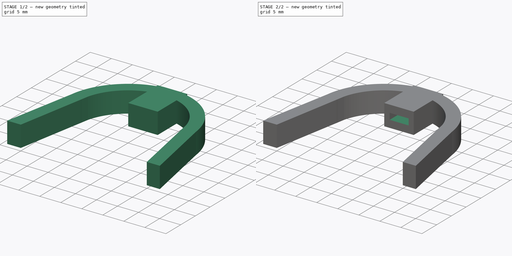
[diagram: build sequence overview — one tinted view per stage of 2, left to right]
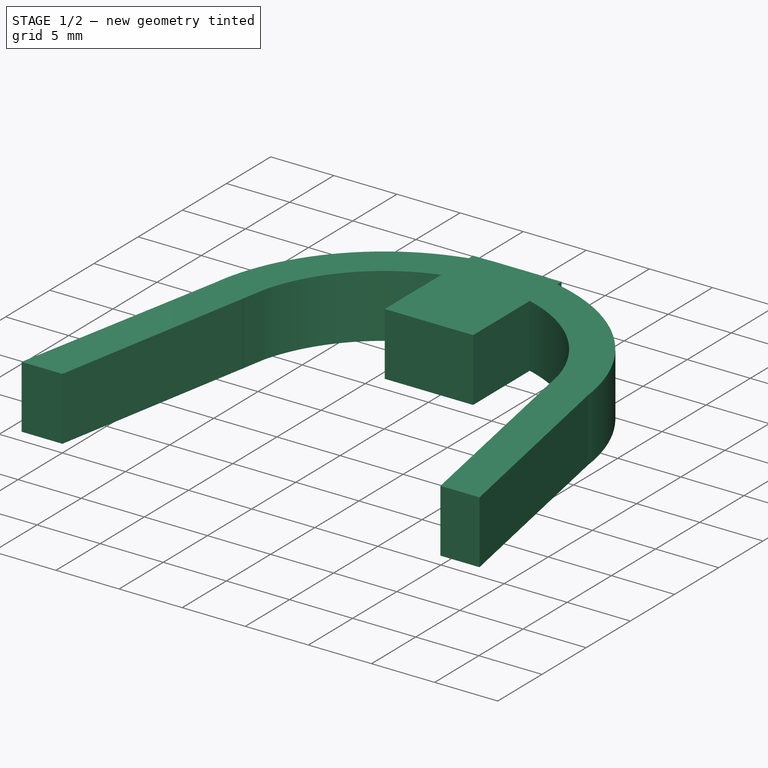
[diagram: stage 1 of 2 — iso view after this stage's code; geometry added in this stage tinted green]
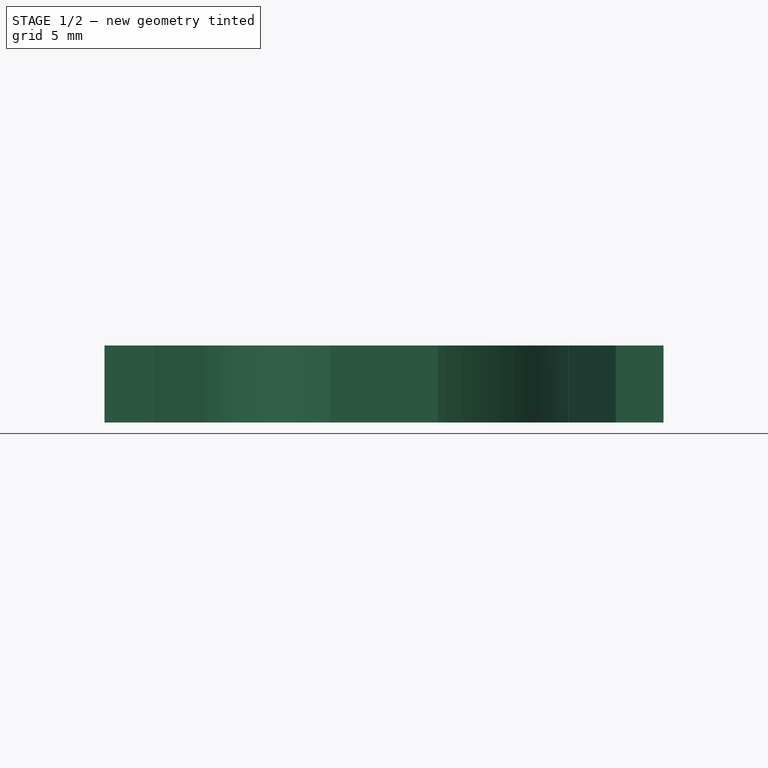
[diagram: stage 1 of 2 — front view after this stage's code; geometry added in this stage tinted green]
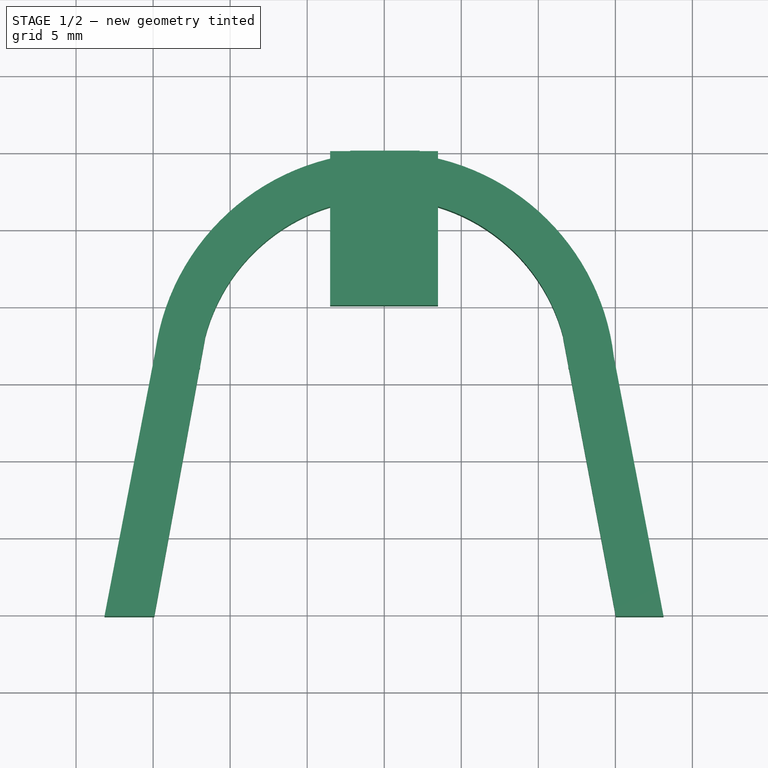
[diagram: stage 1 of 2 — top view after this stage's code; geometry added in this stage tinted green]
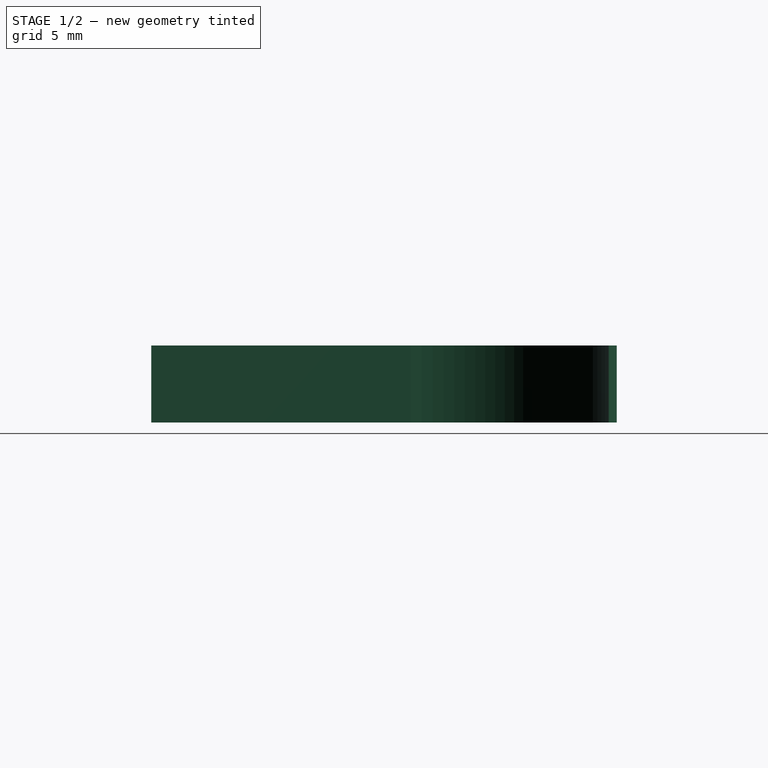
[diagram: stage 1 of 2 — right view after this stage's code; geometry added in this stage tinted green]
FCSTD DOCUMENT  (FreeCAD 0.16R6706 (Git))
Label: pusher
License: All rights reserved
LicenseURL: http://en.wikipedia.org/wiki/All_rights_reserved
objects: Sketcher::SketchObject×3, PartDesign::Pad×2, Part::MultiFuse×1, PartDesign::Pocket×1
note: 10 computed .brp shape members not serialized (recipe doc carries the construction recipe); baked Part::Feature solids carry a one-line shape summary decoded from their .brp

FEATURE [Sketcher::SketchObject] Sketch003
  Placement = pos=(0,0,5) rot=(0,0,1;0rad)
  sketch-geometry (4):
    g0: LineSegment StartX=-3.50899 StartY=15.07 StartZ=0 EndX=3.49101 EndY=15.07 EndZ=0
    g1: LineSegment StartX=3.49101 StartY=15.07 StartZ=0 EndX=3.49101 EndY=5.07003 EndZ=0
    g2: LineSegment StartX=3.49101 StartY=5.07003 StartZ=0 EndX=-3.50899 EndY=5.07003 EndZ=0
    g3: LineSegment StartX=-3.50899 StartY=5.07003 StartZ=0 EndX=-3.50899 EndY=15.07 EndZ=0
  constraints (10):
    c: Coincident(g0,g1)
    c: Coincident(g1,g2)
    c: Coincident(g2,g3)
    c: Coincident(g3,g0)
    c: Horizontal(g0)
    c: Horizontal(g2)
    c: Vertical(g1)
    c: Vertical(g3)
    c: DistanceY(g3,g3) = 10
    c: DistanceX(g2,g2) = 7
FEATURE [PartDesign::Pad] Pad001
  Length = 5
  Length2 = 100
  Placement = pos=(0,0,5) rot=(0,0,1;0rad)
  Reversed = true
  Sketch = -> Sketch003
  Type = 0
FEATURE [Sketcher::SketchObject] Sketch005
  Placement = pos=(0,0,5) rot=(0,0,1;0rad)
  sketch-geometry (8):
    g0: LineSegment StartX=11.6038 StartY=2.99659 StartZ=0 EndX=15.0287 EndY=-15.103 EndZ=0
    g1: LineSegment StartX=15.0287 StartY=-15.103 StartZ=0 EndX=18.1239 EndY=-15.103 EndZ=0
    g2: LineSegment StartX=18.1239 StartY=-15.103 StartZ=0 EndX=14.6577 EndY=2.99659 EndZ=0
    g3: LineSegment StartX=14.6577 StartY=2.99659 StartZ=0 EndX=11.6038 EndY=2.99659 EndZ=0
    g4: LineSegment StartX=-11.6154 StartY=2.99564 StartZ=0 EndX=-14.922 EndY=-15.103 EndZ=0
    g5: LineSegment StartX=-14.922 StartY=-15.103 StartZ=0 EndX=-18.1537 EndY=-15.103 EndZ=0
    g6: LineSegment StartX=-18.1537 StartY=-15.103 StartZ=0 EndX=-14.6764 EndY=2.99564 EndZ=0
    g7: LineSegment StartX=-14.6764 StartY=2.99564 StartZ=0 EndX=-11.6154 EndY=2.99564 EndZ=0
  constraints (12):
    c: Coincident(g0,g1)
    c: Horizontal(g1)
    c: Coincident(g1,g2)
    c: Coincident(g2,g3)
    c: Coincident(g3,g0)
    c: Horizontal(g3)
    c: Coincident(g4,g5)
    c: Horizontal(g5)
    c: Coincident(g5,g6)
    c: Coincident(g6,g7)
    c: Coincident(g7,g4)
    c: Horizontal(g7)
FEATURE [PartDesign::Pad] Pad002
  Length = 5
  Length2 = 100
  Reversed = true
  Sketch = -> Sketch005
  Type = 0
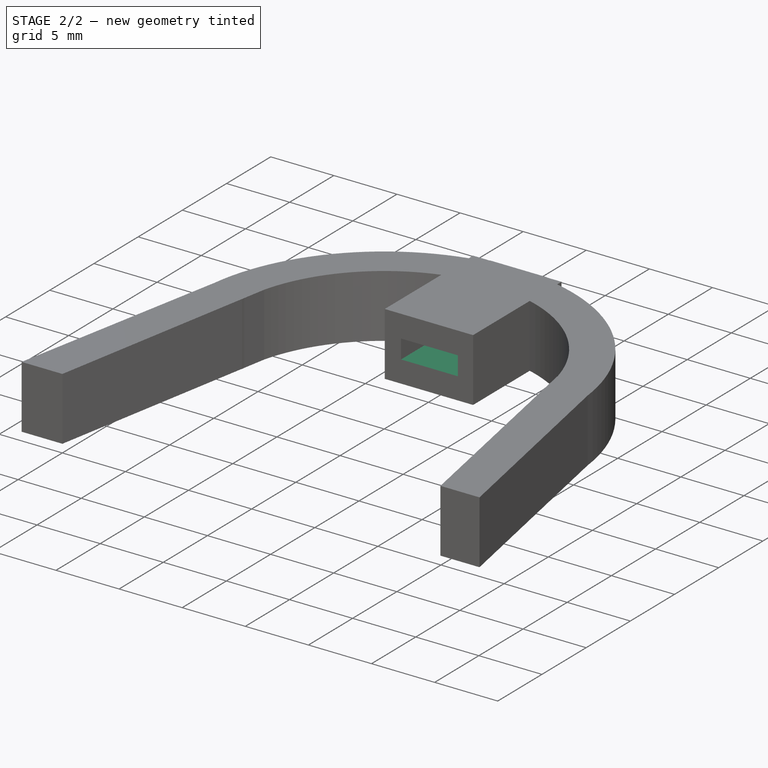
[diagram: stage 2 of 2 — iso view after this stage's code; geometry added in this stage tinted green]
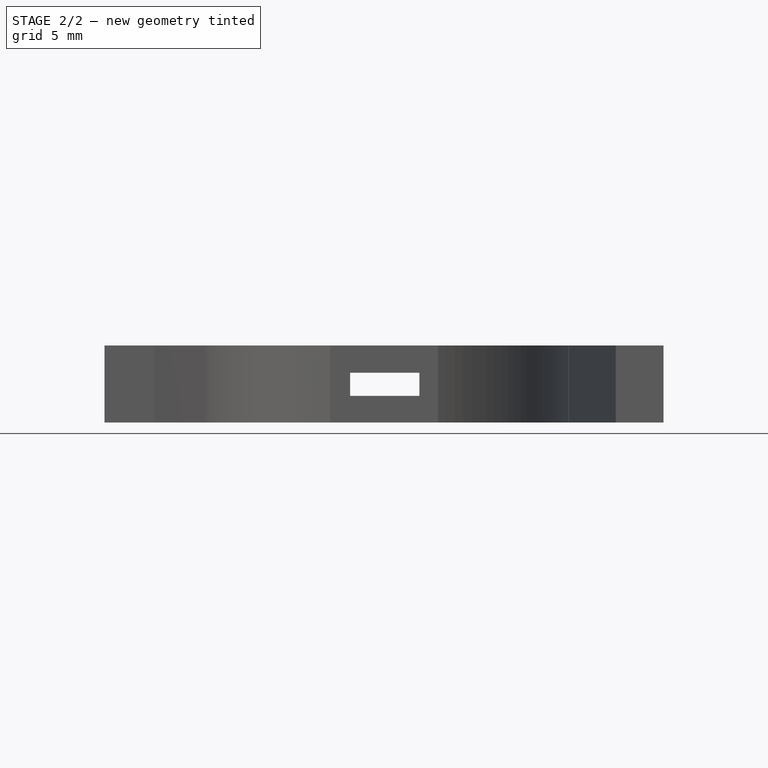
[diagram: stage 2 of 2 — front view after this stage's code; geometry added in this stage tinted green]
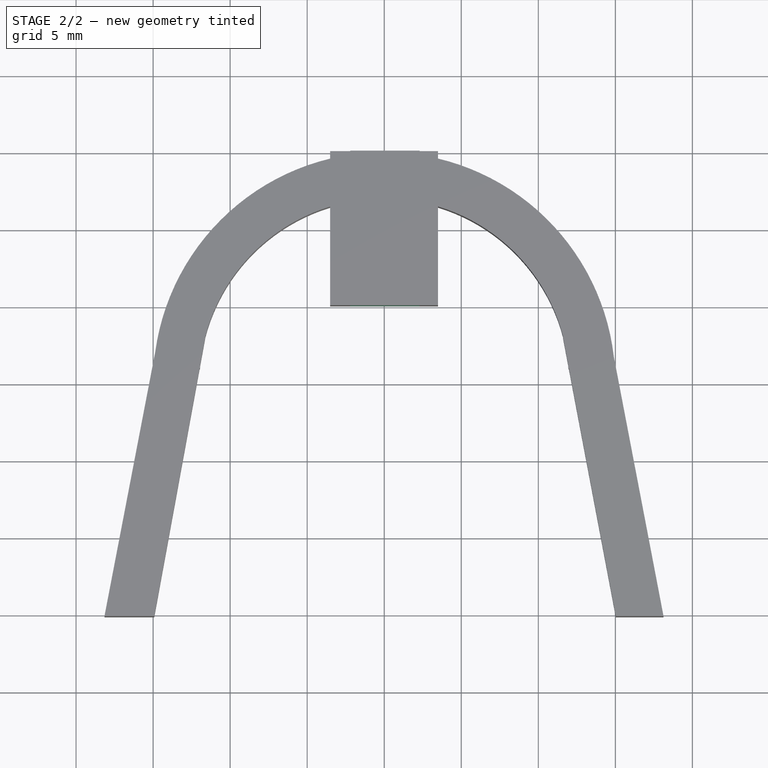
[diagram: stage 2 of 2 — top view after this stage's code; geometry added in this stage tinted green]
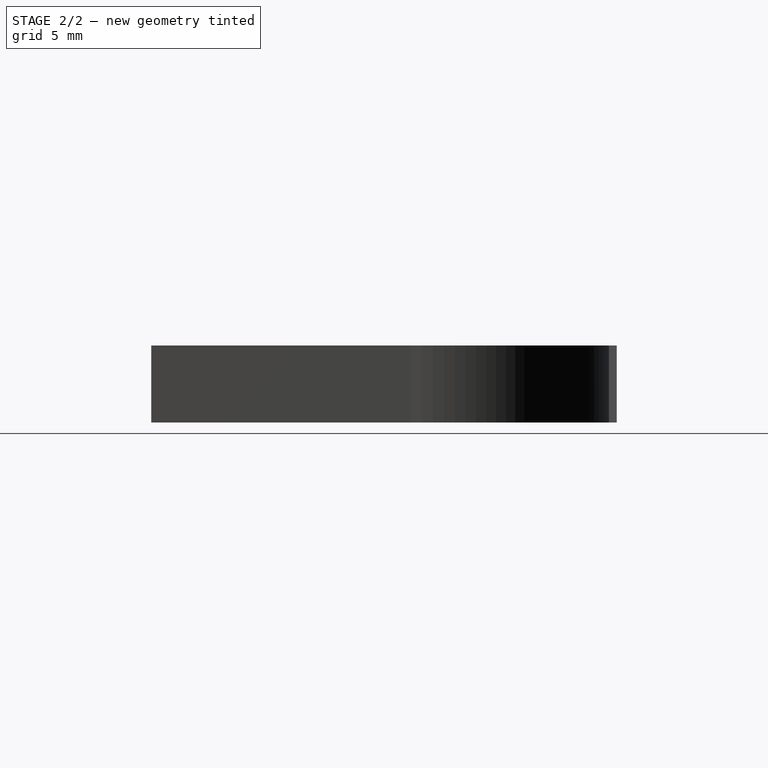
[diagram: stage 2 of 2 — right view after this stage's code; geometry added in this stage tinted green]
FEATURE [Part::MultiFuse] Fusion
  Shapes = -> [Pad002,Pad001]
FEATURE [Sketcher::SketchObject] Sketch
  Placement = pos=(0,15.099,0) rot=(0,0.707107,0.707107;3.14159rad)
  Support = -> Fusion [Face1]
  sketch-geometry (4):
    g0: LineSegment StartX=-2.28359 StartY=3.2317 StartZ=0 EndX=2.21641 EndY=3.2317 EndZ=0
    g1: LineSegment StartX=2.21641 StartY=3.2317 StartZ=0 EndX=2.21641 EndY=1.7317 EndZ=0
    g2: LineSegment StartX=2.21641 StartY=1.7317 StartZ=0 EndX=-2.28359 EndY=1.7317 EndZ=0
    g3: LineSegment StartX=-2.28359 StartY=1.7317 StartZ=0 EndX=-2.28359 EndY=3.2317 EndZ=0
  constraints (10):
    c: Coincident(g0,g1)
    c: Coincident(g1,g2)
    c: Coincident(g2,g3)
    c: Coincident(g3,g0)
    c: Horizontal(g0)
    c: Horizontal(g2)
    c: Vertical(g1)
    c: Vertical(g3)
    c: DistanceX(g0,g0) = 4.5
    c: DistanceY(g3,g3) = 1.5
FEATURE [PartDesign::Pocket] Pocket
  Length = 5
  Sketch = -> Sketch
  Type = 1
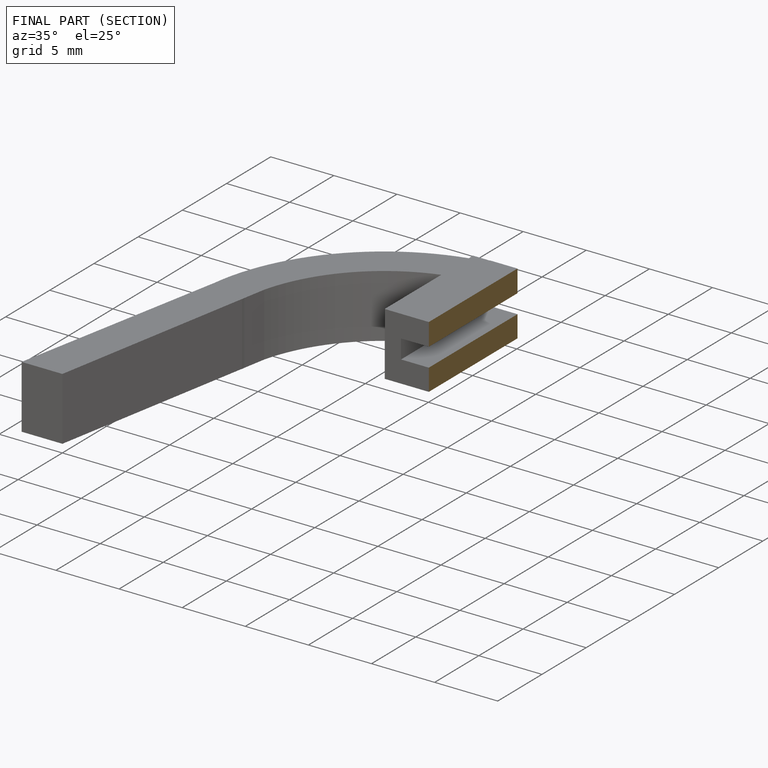
[diagram: finished part — half-section view (interior)]
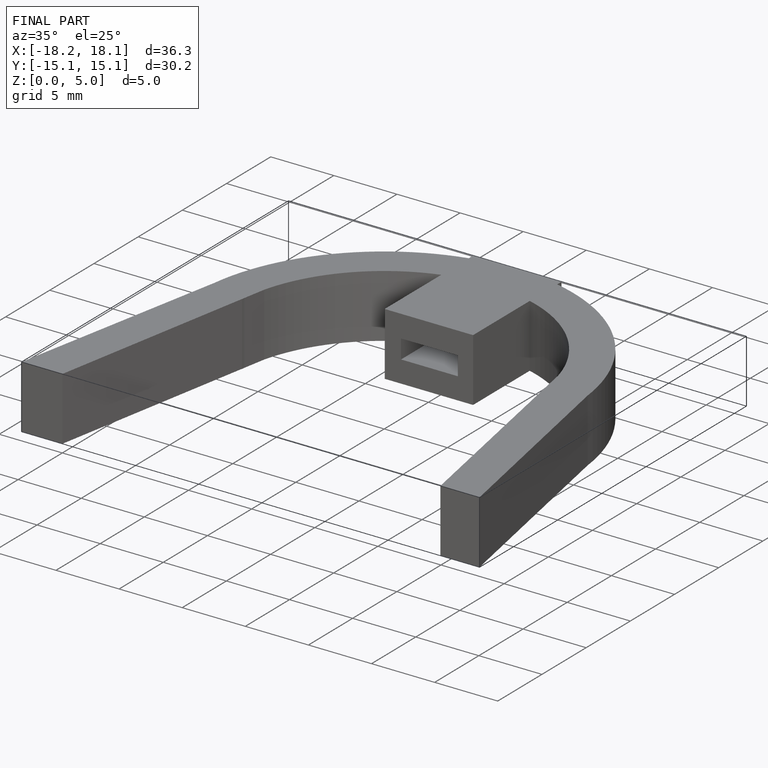
[diagram: finished part — iso view with bounding-box wireframe]
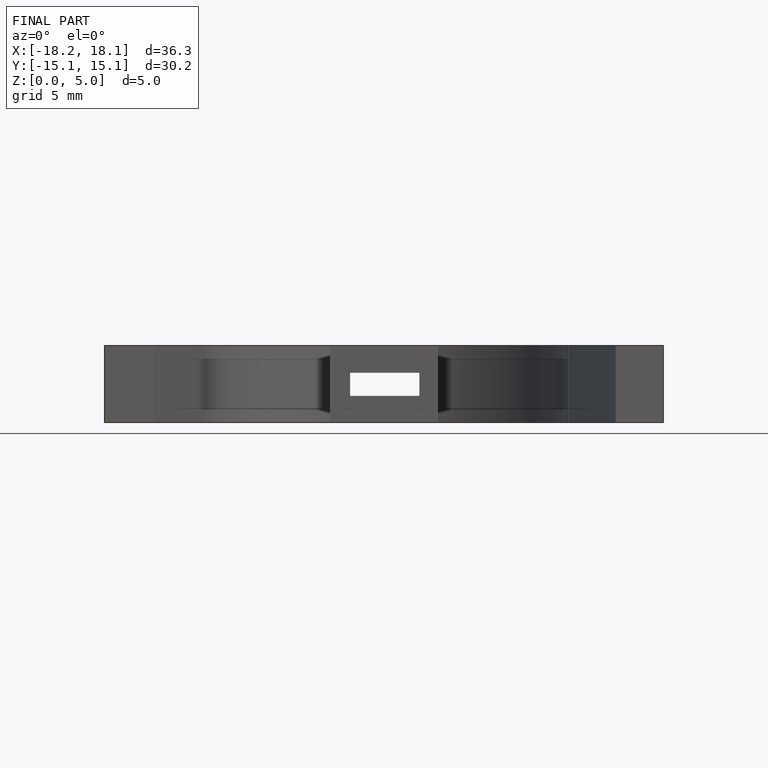
[diagram: finished part — front view with bounding-box wireframe]
